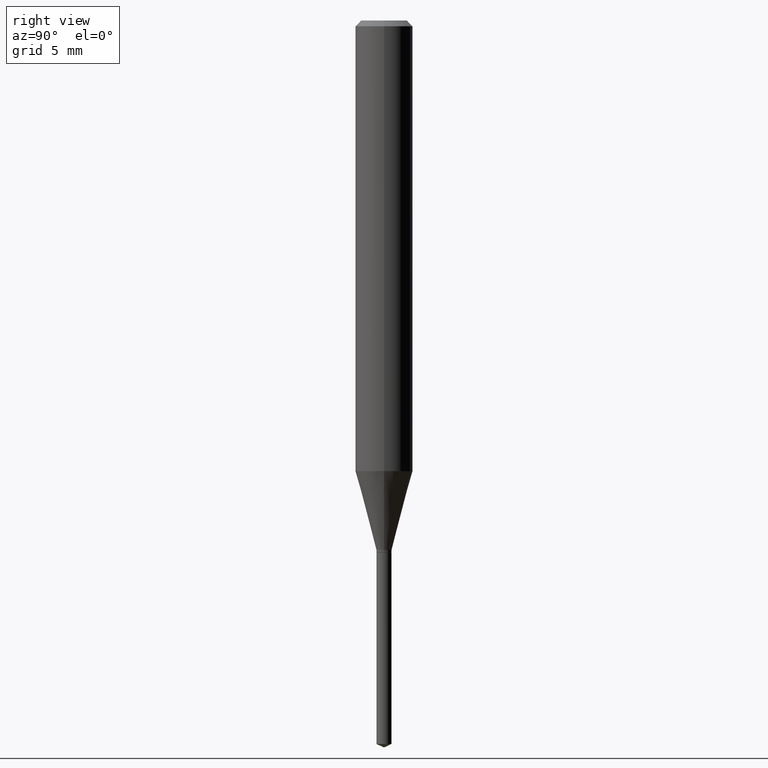
[diagram: clean part render]
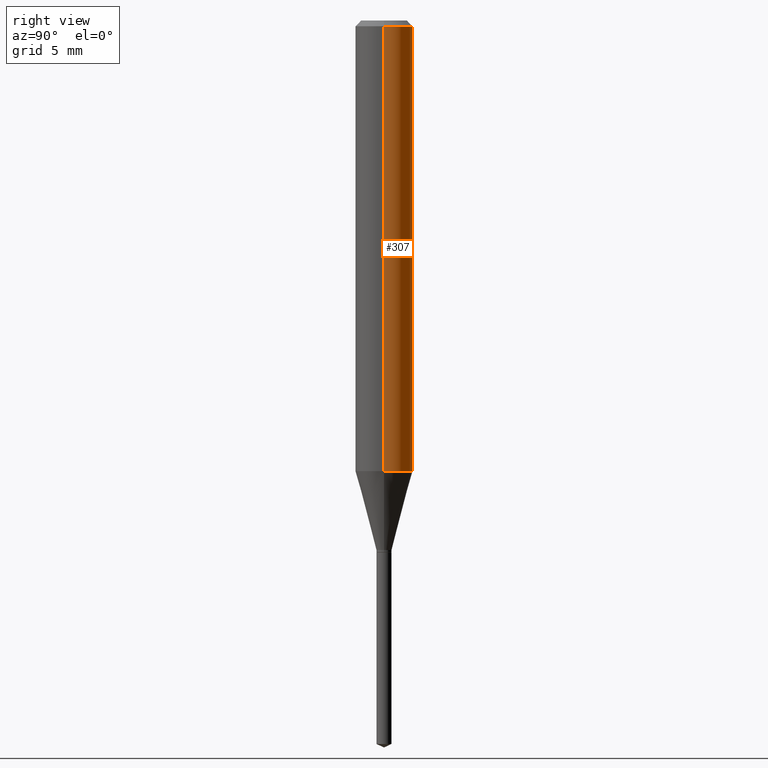
[diagram: same view with one face highlighted and labeled with its STEP entity id]
A machine part, right view. The second image highlights one B-rep face of the part: STEP entity #307.
In plain terms, the highlighted cylindrical surface (edge-blend (fillet) strip) has radius 1.4999 mm, axis along (-0, 0, 1).
Its self-contained STEP definition (entity closure, byte-faithful):
#2 = CARTESIAN_POINT ( 'NONE',  ( -0.05905000000000005383, 4.195754854663395423E-16, -2.904631170795524694E-30 ) ) ;
#22 = ORIENTED_EDGE ( 'NONE', *, *, #77, .F. ) ;
#26 = ORIENTED_EDGE ( 'NONE', *, *, #67, .F. ) ;
#33 = DIRECTION ( 'NONE',  ( -2.445468806185136877E-29, 3.491481338843145188E-15, 1.000000000000000000 ) ) ;
#59 = EDGE_LOOP ( 'NONE', ( #308, #324, #22, #26 ) ) ;
#67 = EDGE_CURVE ( 'NONE', #368, #213, #76, .T. ) ;
#76 = LINE ( 'NONE', #382, #175 ) ;
#77 = EDGE_CURVE ( 'NONE', #213, #119, #416, .T. ) ;
#84 = CARTESIAN_POINT ( 'NONE',  ( -0.05904999999999999832, -1.220139003307412078E-15, -0.01181000000000007044 ) ) ;
#86 = DIRECTION ( 'NONE',  ( -2.445468806185136597E-29, 3.491481338843145583E-15, 1.000000000000000000 ) ) ;
#94 = DIRECTION ( 'NONE',  ( -2.445468806185136597E-29, 3.491481338843145583E-15, 1.000000000000000000 ) ) ;
#110 = DIRECTION ( 'NONE',  ( -2.445468806185136877E-29, 3.491481338843145188E-15, 1.000000000000000000 ) ) ;
#119 = VERTEX_POINT ( 'NONE', #84 ) ;
#122 = CARTESIAN_POINT ( 'NONE',  ( 0.05904999999999999832, -4.535783407291118600E-16, -0.01181000000000007044 ) ) ;
#131 = DIRECTION ( 'NONE',  ( 1.000000000000000000, -6.982962677686266711E-15, 4.876176775795935793E-29 ) ) ;
#138 = DIRECTION ( 'NONE',  ( -2.445468806185136597E-29, 3.491481338843145583E-15, 1.000000000000000000 ) ) ;
#144 = LINE ( 'NONE', #2, #199 ) ;
#169 = DIRECTION ( 'NONE',  ( 1.000000000000000000, -6.982962677686267499E-15, 0.000000000000000000 ) ) ;
#175 = VECTOR ( 'NONE', #33, 39.37007874015748143 ) ;
#199 = VECTOR ( 'NONE', #110, 39.37007874015748143 ) ;
#206 = AXIS2_PLACEMENT_3D ( 'NONE', #365, #94, #169 ) ;
#213 = VERTEX_POINT ( 'NONE', #122 ) ;
#262 = CARTESIAN_POINT ( 'NONE',  ( 2.888098660104663766E-31, -4.123439461173779647E-17, -0.01181000000000007044 ) ) ;
#264 = VERTEX_POINT ( 'NONE', #280 ) ;
#280 = CARTESIAN_POINT ( 'NONE',  ( -0.05905000000000010935, -2.818619097469426315E-15, -0.9274557898707536108 ) ) ;
#289 = EDGE_CURVE ( 'NONE', #368, #264, #344, .T. ) ;
#307 = ADVANCED_FACE ( 'NONE', ( #399 ), #358, .T. ) ;
#308 = ORIENTED_EDGE ( 'NONE', *, *, #289, .T. ) ;
#324 = ORIENTED_EDGE ( 'NONE', *, *, #464, .T. ) ;
#326 = CARTESIAN_POINT ( 'NONE',  ( 0.000000000000000000, 0.000000000000000000, 0.000000000000000000 ) ) ;
#335 = AXIS2_PLACEMENT_3D ( 'NONE', #326, #138, #131 ) ;
#344 = CIRCLE ( 'NONE', #206, 0.05905000000000010935 ) ;
#358 = CYLINDRICAL_SURFACE ( 'NONE', #335, 0.05905000000000005383 ) ;
#365 = CARTESIAN_POINT ( 'NONE',  ( 2.268064203244724858E-29, -3.238194582935765808E-15, -0.9274557898707536108 ) ) ;
#368 = VERTEX_POINT ( 'NONE', #371 ) ;
#371 = CARTESIAN_POINT ( 'NONE',  ( 0.05905000000000010935, -3.650538529053141123E-15, -0.9274557898707536108 ) ) ;
#382 = CARTESIAN_POINT ( 'NONE',  ( 0.05905000000000005383, -4.123439461173744271E-16, 2.879382386107502672E-30 ) ) ;
#387 = DIRECTION ( 'NONE',  ( 1.000000000000000000, -6.982962677686266711E-15, 0.000000000000000000 ) ) ;
#399 = FACE_OUTER_BOUND ( 'NONE', #59, .T. ) ;
#416 = CIRCLE ( 'NONE', #478, 0.05904999999999999832 ) ;
#464 = EDGE_CURVE ( 'NONE', #264, #119, #144, .T. ) ;
#478 = AXIS2_PLACEMENT_3D ( 'NONE', #262, #86, #387 ) ;